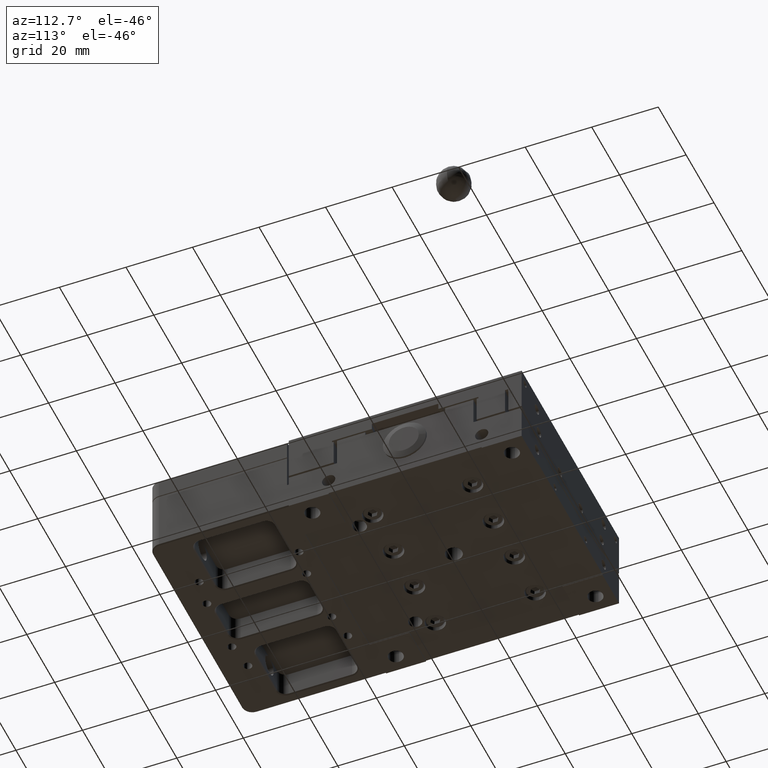
[diagram: clean part render]
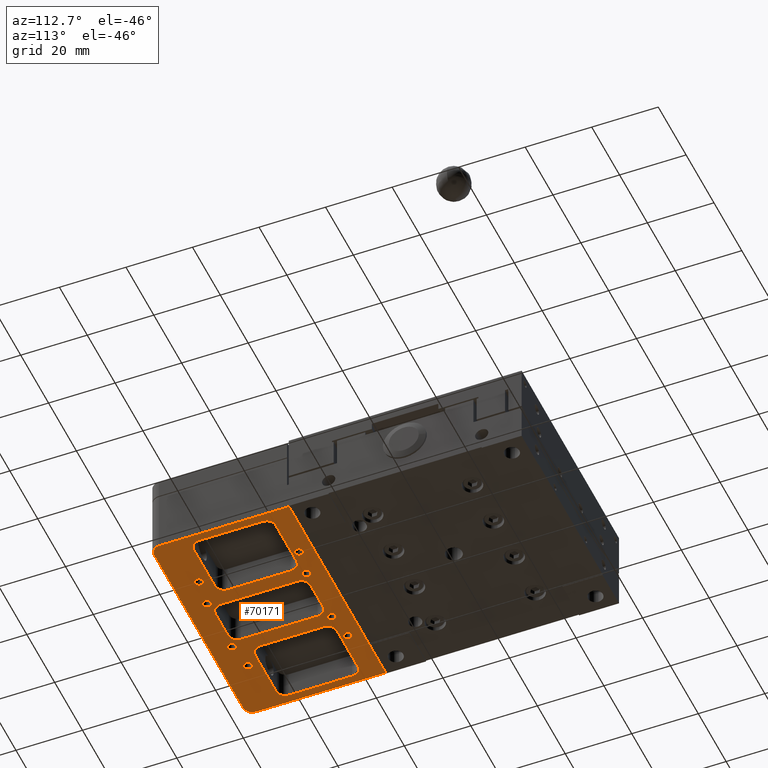
[diagram: same view with one face highlighted and labeled with its STEP entity id]
A machine part, auxiliary view. The second image highlights one B-rep face of the part: STEP entity #70171.
In plain terms, the highlighted planar face has unit normal (0, -0, -1).
Its self-contained STEP definition (entity closure, byte-faithful):
#52 = PLANE ( 'NONE',  #50368 ) ;
#220 = EDGE_CURVE ( 'NONE', #12801, #15108, #69420, .T. ) ;
#346 = DIRECTION ( 'NONE',  ( 1.000000000000000000, 0.0000000000000000000, 0.0000000000000000000 ) ) ;
#428 = EDGE_LOOP ( 'NONE', ( #81326, #33520 ) ) ;
#567 = CIRCLE ( 'NONE', #3140, 1.250000000000001100 ) ;
#685 = CARTESIAN_POINT ( 'NONE',  ( 17.50000000000000400, -69.25000000000000000, 1.630640067418198700E-013 ) ) ;
#745 = EDGE_CURVE ( 'NONE', #24746, #9855, #2786, .T. ) ;
#963 = EDGE_CURVE ( 'NONE', #14629, #40643, #48294, .T. ) ;
#1242 = EDGE_CURVE ( 'NONE', #14469, #1292, #80989, .T. ) ;
#1292 = VERTEX_POINT ( 'NONE', #43328 ) ;
#1954 = CIRCLE ( 'NONE', #75313, 1.250000000000004700 ) ;
#2045 = CARTESIAN_POINT ( 'NONE',  ( 7.299999998005925600, -67.00000000000000000, 1.734723475976807100E-015 ) ) ;
#2598 = LINE ( 'NONE', #45629, #72185 ) ;
#2786 = LINE ( 'NONE', #62035, #18164 ) ;
#2871 = CIRCLE ( 'NONE', #77926, 2.800000000001183300 ) ;
#3114 = CIRCLE ( 'NONE', #41065, 1.250000000000001100 ) ;
#3140 = AXIS2_PLACEMENT_3D ( 'NONE', #20710, #66386, #27298 ) ;
#3340 = CIRCLE ( 'NONE', #26040, 2.799999999999835500 ) ;
#3429 = EDGE_LOOP ( 'NONE', ( #77258, #14258 ) ) ;
#3548 = VERTEX_POINT ( 'NONE', #14839 ) ;
#3752 = EDGE_CURVE ( 'NONE', #33255, #29970, #3340, .T. ) ;
#3825 = CARTESIAN_POINT ( 'NONE',  ( 29.50000000000000000, -63.00000000000000000, 1.317088799135390800E-012 ) ) ;
#3928 = ORIENTED_EDGE ( 'NONE', *, *, #36100, .F. ) ;
#4053 = ORIENTED_EDGE ( 'NONE', *, *, #5221, .F. ) ;
#4143 = CARTESIAN_POINT ( 'NONE',  ( 17.50000000000000400, -39.25000000000000000, 1.908195823574487800E-014 ) ) ;
#4286 = CARTESIAN_POINT ( 'NONE',  ( 32.00000000000001400, -74.00000000000000000, 1.865088464004144300E-013 ) ) ;
#4546 = LINE ( 'NONE', #53604, #54653 ) ;
#4685 = VERTEX_POINT ( 'NONE', #30102 ) ;
#5221 = EDGE_CURVE ( 'NONE', #33738, #12801, #76384, .T. ) ;
#5269 = DIRECTION ( 'NONE',  ( 1.000000000000000000, 0.0000000000000000000, 0.0000000000000000000 ) ) ;
#5476 = FACE_BOUND ( 'NONE', #3429, .T. ) ;
#5700 = EDGE_CURVE ( 'NONE', #40643, #33738, #74188, .T. ) ;
#5835 = CIRCLE ( 'NONE', #56952, 1.250000000000001100 ) ;
#6325 = AXIS2_PLACEMENT_3D ( 'NONE', #75283, #36206, #81860 ) ;
#6630 = CIRCLE ( 'NONE', #16296, 2.800000000001183300 ) ;
#6698 = VECTOR ( 'NONE', #36810, 1000.000000000000000 ) ;
#6786 = EDGE_LOOP ( 'NONE', ( #15998, #23155 ) ) ;
#7166 = AXIS2_PLACEMENT_3D ( 'NONE', #55748, #16587, #62298 ) ;
#7190 = ORIENTED_EDGE ( 'NONE', *, *, #37104, .F. ) ;
#7223 = DIRECTION ( 'NONE',  ( 1.000000000000000000, 0.0000000000000000000, 0.0000000000000000000 ) ) ;
#7413 = CIRCLE ( 'NONE', #41231, 1.250000000000004700 ) ;
#7535 = FACE_BOUND ( 'NONE', #61183, .T. ) ;
#7742 = EDGE_CURVE ( 'NONE', #57899, #33255, #14425, .T. ) ;
#7953 = VECTOR ( 'NONE', #77512, 1000.000000000000000 ) ;
#7981 = EDGE_CURVE ( 'NONE', #47031, #35104, #74640, .T. ) ;
#8320 = EDGE_LOOP ( 'NONE', ( #27474, #7190 ) ) ;
#8774 = CARTESIAN_POINT ( 'NONE',  ( 10.25000000000000200, -40.50000000000000000, 2.602085213965210600E-014 ) ) ;
#8944 = DIRECTION ( 'NONE',  ( -0.0000000000000000000, -0.0000000000000000000, -1.000000000000000000 ) ) ;
#9247 = DIRECTION ( 'NONE',  ( -0.0000000000000000000, -0.0000000000000000000, -1.000000000000000000 ) ) ;
#9684 = CARTESIAN_POINT ( 'NONE',  ( 32.29999999800433100, -44.00000003619999900, 1.229647893924434900E-012 ) ) ;
#9761 = ORIENTED_EDGE ( 'NONE', *, *, #83573, .F. ) ;
#9855 = VERTEX_POINT ( 'NONE', #60348 ) ;
#10388 = VERTEX_POINT ( 'NONE', #39732 ) ;
#10395 = DIRECTION ( 'NONE',  ( -1.000000000000000000, 0.0000000000000000000, 0.0000000000000000000 ) ) ;
#10429 = ORIENTED_EDGE ( 'NONE', *, *, #51838, .F. ) ;
#10694 = DIRECTION ( 'NONE',  ( 1.000000000000000000, 0.0000000000000000000, 0.0000000000000000000 ) ) ;
#10819 = ORIENTED_EDGE ( 'NONE', *, *, #220, .F. ) ;
#10838 = DIRECTION ( 'NONE',  ( 0.0000000000000000000, 1.000000000000000000, -4.682152101927685900E-015 ) ) ;
#11241 = CARTESIAN_POINT ( 'NONE',  ( -32.29999999800433800, -62.99999996380001500, 1.324407163799667900E-012 ) ) ;
#11245 = CARTESIAN_POINT ( 'NONE',  ( -31.99999999999998600, -74.00000000000000000, 1.865088464004144300E-013 ) ) ;
#11592 = ORIENTED_EDGE ( 'NONE', *, *, #14305, .F. ) ;
#11964 = EDGE_CURVE ( 'NONE', #31134, #65822, #12294, .T. ) ;
#11981 = EDGE_CURVE ( 'NONE', #41498, #41033, #3114, .T. ) ;
#12294 = CIRCLE ( 'NONE', #32301, 1.250000000000001100 ) ;
#12801 = VERTEX_POINT ( 'NONE', #11241 ) ;
#12848 = AXIS2_PLACEMENT_3D ( 'NONE', #60945, #21834, #67496 ) ;
#12889 = LINE ( 'NONE', #25160, #45616 ) ;
#13037 = CARTESIAN_POINT ( 'NONE',  ( 14.50000003619999900, -41.20000000199565400, 1.234364173374746800E-012 ) ) ;
#13510 = CARTESIAN_POINT ( 'NONE',  ( -34.70000000000013100, -35.00000000000000000, 8.122441521566896100E-016 ) ) ;
#13805 = VECTOR ( 'NONE', #73254, 1000.000000000000000 ) ;
#14258 = ORIENTED_EDGE ( 'NONE', *, *, #11964, .F. ) ;
#14273 = ORIENTED_EDGE ( 'NONE', *, *, #27826, .F. ) ;
#14305 = EDGE_CURVE ( 'NONE', #9855, #61645, #6630, .T. ) ;
#14391 = CARTESIAN_POINT ( 'NONE',  ( 0.0000000000000000000, -65.79999999601001500, 1.481151995736988200E-013 ) ) ;
#14425 = LINE ( 'NONE', #65888, #16453 ) ;
#14469 = VERTEX_POINT ( 'NONE', #36028 ) ;
#14629 = VERTEX_POINT ( 'NONE', #71101 ) ;
#14636 = CARTESIAN_POINT ( 'NONE',  ( 9.000000000000001800, -70.50000000000000000, 1.682681771697502900E-013 ) ) ;
#14839 = CARTESIAN_POINT ( 'NONE',  ( -11.70000000199566000, -44.00000003619999900, 1.220974276544550800E-012 ) ) ;
#14880 = VERTEX_POINT ( 'NONE', #68483 ) ;
#14985 = CARTESIAN_POINT ( 'NONE',  ( -4.499999963799499600, -41.20000000199497200, -1.192622389734054900E-013 ) ) ;
#15028 = ORIENTED_EDGE ( 'NONE', *, *, #3752, .F. ) ;
#15108 = VERTEX_POINT ( 'NONE', #46743 ) ;
#15361 = ORIENTED_EDGE ( 'NONE', *, *, #36076, .F. ) ;
#15709 = CARTESIAN_POINT ( 'NONE',  ( 18.75000000000000700, -69.25000000000000000, 1.630640067418198700E-013 ) ) ;
#15974 = DIRECTION ( 'NONE',  ( -0.0000000000000000000, -0.0000000000000000000, -1.000000000000000000 ) ) ;
#15998 = ORIENTED_EDGE ( 'NONE', *, *, #17168, .F. ) ;
#16117 = DIRECTION ( 'NONE',  ( -0.0000000000000000000, -0.0000000000000000000, -1.000000000000000000 ) ) ;
#16296 = AXIS2_PLACEMENT_3D ( 'NONE', #22050, #67701, #28630 ) ;
#16453 = VECTOR ( 'NONE', #27059, 1000.000000000000000 ) ;
#16560 = VECTOR ( 'NONE', #74724, 1000.000000000000000 ) ;
#16587 = DIRECTION ( 'NONE',  ( -0.0000000000000000000, -0.0000000000000000000, -1.000000000000000000 ) ) ;
#16752 = EDGE_CURVE ( 'NONE', #1292, #14469, #7413, .T. ) ;
#16889 = ORIENTED_EDGE ( 'NONE', *, *, #58095, .F. ) ;
#17168 = EDGE_CURVE ( 'NONE', #70324, #56057, #78868, .T. ) ;
#17431 = EDGE_CURVE ( 'NONE', #80192, #14880, #57290, .T. ) ;
#17646 = ORIENTED_EDGE ( 'NONE', *, *, #74676, .T. ) ;
#17652 = DIRECTION ( 'NONE',  ( -0.0000000000000000000, -0.0000000000000000000, -1.000000000000000000 ) ) ;
#17829 = DIRECTION ( 'NONE',  ( 0.0000000000000000000, 1.000000000000000000, -4.682152101927673300E-015 ) ) ;
#18057 = ORIENTED_EDGE ( 'NONE', *, *, #963, .F. ) ;
#18164 = VECTOR ( 'NONE', #55461, 1000.000000000000000 ) ;
#18301 = DIRECTION ( 'NONE',  ( -0.0000000000000000000, -0.0000000000000000000, -1.000000000000000000 ) ) ;
#18733 = EDGE_LOOP ( 'NONE', ( #28280, #48124, #3928, #41516, #15028, #19294, #51246, #69779 ) ) ;
#18819 = CARTESIAN_POINT ( 'NONE',  ( -4.499999991968501900, -69.79999999800503500, 1.301042606982605300E-015 ) ) ;
#19157 = EDGE_CURVE ( 'NONE', #56057, #70324, #567, .T. ) ;
#19195 = LINE ( 'NONE', #80179, #53989 ) ;
#19294 = ORIENTED_EDGE ( 'NONE', *, *, #7742, .F. ) ;
#19399 = DIRECTION ( 'NONE',  ( -0.0000000000000000000, -0.0000000000000000000, -1.000000000000000000 ) ) ;
#19608 = DIRECTION ( 'NONE',  ( 0.0000000000000000000, -1.000000000000000000, 4.682152101927685900E-015 ) ) ;
#19687 = CARTESIAN_POINT ( 'NONE',  ( -14.50000000000000200, -63.00000000000000000, 1.318877732719991900E-012 ) ) ;
#19824 = VERTEX_POINT ( 'NONE', #15709 ) ;
#20336 = AXIS2_PLACEMENT_3D ( 'NONE', #19687, #65402, #26238 ) ;
#20508 = CIRCLE ( 'NONE', #12848, 2.800000000001183300 ) ;
#20625 = CIRCLE ( 'NONE', #67927, 1.250000000000001100 ) ;
#20710 = CARTESIAN_POINT ( 'NONE',  ( 9.000000000000001800, -70.50000000000000000, 1.682681771697502900E-013 ) ) ;
#21042 = VERTEX_POINT ( 'NONE', #83243 ) ;
#21106 = EDGE_CURVE ( 'NONE', #61645, #50735, #79576, .T. ) ;
#21246 = DIRECTION ( 'NONE',  ( 1.000000000000000000, 0.0000000000000000000, 0.0000000000000000000 ) ) ;
#21458 = VERTEX_POINT ( 'NONE', #76856 ) ;
#21574 = CARTESIAN_POINT ( 'NONE',  ( -29.50000000000000000, -44.00000000000000000, 1.216583257745984500E-012 ) ) ;
#21834 = DIRECTION ( 'NONE',  ( -3.009265538103724800E-032, 1.084202172485265800E-017, -1.000000000000000000 ) ) ;
#22049 = LINE ( 'NONE', #31915, #37371 ) ;
#22050 = CARTESIAN_POINT ( 'NONE',  ( 29.50000000000000000, -44.00000000000000000, 1.229647893924434900E-012 ) ) ;
#22693 = EDGE_LOOP ( 'NONE', ( #45851, #42520 ) ) ;
#22700 = CARTESIAN_POINT ( 'NONE',  ( -31.99999995397682200, -76.70002049568925900, -2.228686806522899500E-005 ) ) ;
#22725 = CARTESIAN_POINT ( 'NONE',  ( -17.50000000000000400, -39.25000000000000000, 1.908195823574487800E-014 ) ) ;
#22924 = FACE_BOUND ( 'NONE', #37035, .T. ) ;
#23136 = CIRCLE ( 'NONE', #38944, 2.700081588206532300 ) ;
#23155 = ORIENTED_EDGE ( 'NONE', *, *, #19157, .F. ) ;
#23654 = CARTESIAN_POINT ( 'NONE',  ( 0.0000000000000000000, -65.79999999601001500, 1.481151995736987900E-013 ) ) ;
#23859 = CARTESIAN_POINT ( 'NONE',  ( 17.50000000000000400, -69.25000000000000000, 1.630640067418198700E-013 ) ) ;
#23947 = CARTESIAN_POINT ( 'NONE',  ( -14.50000001199500200, -41.20000000199440400, 1.221003007902099900E-012 ) ) ;
#24676 = LINE ( 'NONE', #35904, #42066 ) ;
#24746 = VERTEX_POINT ( 'NONE', #13037 ) ;
#24940 = FACE_BOUND ( 'NONE', #78943, .T. ) ;
#25065 = VECTOR ( 'NONE', #74133, 1000.000000000000000 ) ;
#25160 = CARTESIAN_POINT ( 'NONE',  ( -34.70000000000011700, -74.78000000000000100, 1.901555085268014100E-013 ) ) ;
#26040 = AXIS2_PLACEMENT_3D ( 'NONE', #56782, #17652, #63359 ) ;
#26238 = DIRECTION ( 'NONE',  ( -1.000000000000000000, 0.0000000000000000000, 0.0000000000000000000 ) ) ;
#26943 = VERTEX_POINT ( 'NONE', #59498 ) ;
#27059 = DIRECTION ( 'NONE',  ( -0.0000000000000000000, 1.000000000000000000, -4.682152101927686700E-015 ) ) ;
#27298 = DIRECTION ( 'NONE',  ( 1.000000000000000000, 0.0000000000000000000, 0.0000000000000000000 ) ) ;
#27355 = ORIENTED_EDGE ( 'NONE', *, *, #745, .F. ) ;
#27444 = ORIENTED_EDGE ( 'NONE', *, *, #5700, .F. ) ;
#27474 = ORIENTED_EDGE ( 'NONE', *, *, #36328, .F. ) ;
#27614 = ORIENTED_EDGE ( 'NONE', *, *, #40874, .F. ) ;
#27723 = VERTEX_POINT ( 'NONE', #76496 ) ;
#27767 = CIRCLE ( 'NONE', #63598, 2.800000000001190400 ) ;
#27826 = EDGE_CURVE ( 'NONE', #21042, #24746, #73026, .T. ) ;
#27832 = CARTESIAN_POINT ( 'NONE',  ( -16.25000000000000400, -69.25000000000000000, 1.630640067418198700E-013 ) ) ;
#28091 = VERTEX_POINT ( 'NONE', #55035 ) ;
#28145 = DIRECTION ( 'NONE',  ( 0.0000000000000000000, 1.000000000000000000, 1.084202172487581800E-017 ) ) ;
#28181 = CARTESIAN_POINT ( 'NONE',  ( 0.0000000000000000000, -69.79999999601001500, 1.668438079814094800E-013 ) ) ;
#28236 = EDGE_CURVE ( 'NONE', #26943, #33222, #45359, .T. ) ;
#28280 = ORIENTED_EDGE ( 'NONE', *, *, #47085, .F. ) ;
#28630 = DIRECTION ( 'NONE',  ( -1.000000000000000000, 0.0000000000000000000, 0.0000000000000000000 ) ) ;
#28659 = CARTESIAN_POINT ( 'NONE',  ( -10.25000000000000200, -40.50000000000000000, 2.602085213965210600E-014 ) ) ;
#29067 = CARTESIAN_POINT ( 'NONE',  ( 34.70000000000013100, -34.21999999999999900, 2.574980159653073000E-016 ) ) ;
#29259 = DIRECTION ( 'NONE',  ( 1.000000000000000000, 0.0000000000000000000, 0.0000000000000000000 ) ) ;
#29481 = CARTESIAN_POINT ( 'NONE',  ( 4.500000000000000900, -67.00000000000000000, 1.734723475976807100E-015 ) ) ;
#29963 = EDGE_CURVE ( 'NONE', #15108, #53560, #2871, .T. ) ;
#29970 = VERTEX_POINT ( 'NONE', #14985 ) ;
#30102 = CARTESIAN_POINT ( 'NONE',  ( 11.70000000199566200, -62.99999996380001500, 1.312535150010951700E-012 ) ) ;
#30230 = AXIS2_PLACEMENT_3D ( 'NONE', #4143, #49878, #10694 ) ;
#30438 = DIRECTION ( 'NONE',  ( 1.000000000000000000, 0.0000000000000000000, 0.0000000000000000000 ) ) ;
#30586 = CARTESIAN_POINT ( 'NONE',  ( -7.750000000000000000, -40.50000000000000000, 2.602085213965210600E-014 ) ) ;
#30653 = ORIENTED_EDGE ( 'NONE', *, *, #46602, .F. ) ;
#30780 = CARTESIAN_POINT ( 'NONE',  ( -29.49999996380000100, -41.20000000199564000, 1.216611989103533600E-012 ) ) ;
#30866 = DIRECTION ( 'NONE',  ( -0.0000000000000000000, -0.0000000000000000000, -1.000000000000000000 ) ) ;
#30899 = CARTESIAN_POINT ( 'NONE',  ( -29.49999999196999700, -65.79999999800433800, 1.324407163799667900E-012 ) ) ;
#31134 = VERTEX_POINT ( 'NONE', #75031 ) ;
#31141 = CARTESIAN_POINT ( 'NONE',  ( -32.29999999600999400, -55.85000000000000100, 1.015277861781999700E-013 ) ) ;
#31761 = DIRECTION ( 'NONE',  ( 2.490164328172554000E-016, -1.000000000000000000, 4.682152101927685900E-015 ) ) ;
#31915 = CARTESIAN_POINT ( 'NONE',  ( 0.0000000000000000000, -35.00000000000000000, -8.131516293641283300E-017 ) ) ;
#32076 = CARTESIAN_POINT ( 'NONE',  ( -9.000000000000001800, -70.50000000000000000, 1.682681771697502900E-013 ) ) ;
#32301 = AXIS2_PLACEMENT_3D ( 'NONE', #58533, #19399, #65129 ) ;
#32337 = DIRECTION ( 'NONE',  ( -0.0000000000000000000, -0.0000000000000000000, -1.000000000000000000 ) ) ;
#32379 = VERTEX_POINT ( 'NONE', #18819 ) ;
#33193 = VECTOR ( 'NONE', #46408, 1000.000000000000000 ) ;
#33222 = VERTEX_POINT ( 'NONE', #22700 ) ;
#33242 = LINE ( 'NONE', #40739, #13805 ) ;
#33255 = VERTEX_POINT ( 'NONE', #49210 ) ;
#33286 = ORIENTED_EDGE ( 'NONE', *, *, #84116, .F. ) ;
#33520 = ORIENTED_EDGE ( 'NONE', *, *, #77444, .F. ) ;
#33738 = VERTEX_POINT ( 'NONE', #30899 ) ;
#34432 = ORIENTED_EDGE ( 'NONE', *, *, #40973, .F. ) ;
#34882 = CARTESIAN_POINT ( 'NONE',  ( 9.000000000000001800, -40.50000000000000000, 2.602085213965210600E-014 ) ) ;
#35104 = VERTEX_POINT ( 'NONE', #30586 ) ;
#35696 = AXIS2_PLACEMENT_3D ( 'NONE', #685, #46420, #7223 ) ;
#35904 = CARTESIAN_POINT ( 'NONE',  ( -11.70000000399000400, -55.84999999999999400, 1.015277861781999700E-013 ) ) ;
#36028 = CARTESIAN_POINT ( 'NONE',  ( 18.75000000000001100, -39.25000000000000000, 1.908195823574487800E-014 ) ) ;
#36071 = DIRECTION ( 'NONE',  ( -1.000000000000000000, 0.0000000000000000000, 0.0000000000000000000 ) ) ;
#36076 = EDGE_CURVE ( 'NONE', #39926, #45952, #68657, .T. ) ;
#36100 = EDGE_CURVE ( 'NONE', #47869, #28091, #77868, .T. ) ;
#36206 = DIRECTION ( 'NONE',  ( -0.0000000000000000000, -0.0000000000000000000, -1.000000000000000000 ) ) ;
#36328 = EDGE_CURVE ( 'NONE', #76147, #21458, #76807, .T. ) ;
#36346 = AXIS2_PLACEMENT_3D ( 'NONE', #14636, #60347, #21246 ) ;
#36601 = ORIENTED_EDGE ( 'NONE', *, *, #28236, .F. ) ;
#36810 = DIRECTION ( 'NONE',  ( -1.000000000000000000, -0.0000000000000000000, -0.0000000000000000000 ) ) ;
#37035 = EDGE_LOOP ( 'NONE', ( #44299, #59129 ) ) ;
#37104 = EDGE_CURVE ( 'NONE', #21458, #76147, #45374, .T. ) ;
#37371 = VECTOR ( 'NONE', #77594, 1000.000000000000000 ) ;
#37423 = CARTESIAN_POINT ( 'NONE',  ( 14.50000000803000200, -65.79999999800433800, 1.312535150010951700E-012 ) ) ;
#38027 = ORIENTED_EDGE ( 'NONE', *, *, #56330, .F. ) ;
#38231 = ORIENTED_EDGE ( 'NONE', *, *, #42337, .F. ) ;
#38239 = FACE_OUTER_BOUND ( 'NONE', #42802, .T. ) ;
#38656 = DIRECTION ( 'NONE',  ( 1.000000000000000000, 0.0000000000000000000, 0.0000000000000000000 ) ) ;
#38794 = CARTESIAN_POINT ( 'NONE',  ( 14.50000000000000000, -44.00000000000000000, 1.234364173374746800E-012 ) ) ;
#38944 = AXIS2_PLACEMENT_3D ( 'NONE', #4286, #50012, #10838 ) ;
#38968 = CARTESIAN_POINT ( 'NONE',  ( 7.750000000000000000, -70.50000000000000000, 1.682681771697502900E-013 ) ) ;
#39159 = DIRECTION ( 'NONE',  ( -0.0000000000000000000, -0.0000000000000000000, -1.000000000000000000 ) ) ;
#39570 = DIRECTION ( 'NONE',  ( 0.0000000000000000000, -4.682152101927685900E-015, -1.000000000000000000 ) ) ;
#39732 = CARTESIAN_POINT ( 'NONE',  ( 16.25000000000000400, -69.25000000000000000, 1.630640067418198700E-013 ) ) ;
#39863 = CARTESIAN_POINT ( 'NONE',  ( 33.28000000000000100, -76.70000000000011700, 1.991543865584311000E-013 ) ) ;
#39926 = VERTEX_POINT ( 'NONE', #74721 ) ;
#40316 = FACE_BOUND ( 'NONE', #22693, .T. ) ;
#40643 = VERTEX_POINT ( 'NONE', #43493 ) ;
#40739 = CARTESIAN_POINT ( 'NONE',  ( 0.0000000000000000000, -41.20000000398999200, 3.293425790364110300E-014 ) ) ;
#40874 = EDGE_CURVE ( 'NONE', #27723, #79561, #80814, .T. ) ;
#40973 = EDGE_CURVE ( 'NONE', #83296, #3548, #20508, .T. ) ;
#41033 = VERTEX_POINT ( 'NONE', #54659 ) ;
#41065 = AXIS2_PLACEMENT_3D ( 'NONE', #78262, #39159, #84799 ) ;
#41077 = DIRECTION ( 'NONE',  ( -0.0000000000000000000, 1.000000000000000000, -4.682152101927685900E-015 ) ) ;
#41203 = AXIS2_PLACEMENT_3D ( 'NONE', #55296, #16117, #61855 ) ;
#41231 = AXIS2_PLACEMENT_3D ( 'NONE', #48436, #9247, #55023 ) ;
#41448 = DIRECTION ( 'NONE',  ( 1.000000000000000000, 0.0000000000000000000, 0.0000000000000000000 ) ) ;
#41498 = VERTEX_POINT ( 'NONE', #81421 ) ;
#41516 = ORIENTED_EDGE ( 'NONE', *, *, #74850, .F. ) ;
#42066 = VECTOR ( 'NONE', #42453, 1000.000000000000000 ) ;
#42337 = EDGE_CURVE ( 'NONE', #53560, #83296, #33242, .T. ) ;
#42336 = FACE_BOUND ( 'NONE', #18733, .T. ) ;
#42453 = DIRECTION ( 'NONE',  ( 0.0000000000000000000, -1.000000000000000000, 4.682152101927685900E-015 ) ) ;
#42520 = ORIENTED_EDGE ( 'NONE', *, *, #7981, .F. ) ;
#42802 = EDGE_LOOP ( 'NONE', ( #15361, #38027, #16889, #36601, #33286, #17646 ) ) ;
#43328 = CARTESIAN_POINT ( 'NONE',  ( 16.25000000000000000, -39.25000000000000000, 1.908195823574487800E-014 ) ) ;
#43493 = CARTESIAN_POINT ( 'NONE',  ( -14.50000003620000100, -65.79999999800433800, 1.318877732719991900E-012 ) ) ;
#44299 = ORIENTED_EDGE ( 'NONE', *, *, #55820, .F. ) ;
#44458 = DIRECTION ( 'NONE',  ( -0.0000000000000000000, -0.0000000000000000000, -1.000000000000000000 ) ) ;
#44526 = CARTESIAN_POINT ( 'NONE',  ( 31.99999997346683500, -76.70002049568510900, -2.228686478025094200E-005 ) ) ;
#45184 = ORIENTED_EDGE ( 'NONE', *, *, #21106, .F. ) ;
#45359 = CIRCLE ( 'NONE', #73127, 2.700081588206518100 ) ;
#45361 = DIRECTION ( 'NONE',  ( -1.000000000000000000, 0.0000000000000000000, 0.0000000000000000000 ) ) ;
#45374 = CIRCLE ( 'NONE', #65567, 1.250000000000001100 ) ;
#45616 = VECTOR ( 'NONE', #31761, 1000.000000000000000 ) ;
#45629 = CARTESIAN_POINT ( 'NONE',  ( 7.299999996012003200, -55.84999999999999400, 1.015277861781999700E-013 ) ) ;
#45851 = ORIENTED_EDGE ( 'NONE', *, *, #75574, .F. ) ;
#45952 = VERTEX_POINT ( 'NONE', #68512 ) ;
#46087 = VECTOR ( 'NONE', #60110, 1000.000000000000000 ) ;
#46225 = CIRCLE ( 'NONE', #7166, 1.250000000000001100 ) ;
#46408 = DIRECTION ( 'NONE',  ( 1.000000000000000000, 0.0000000000000000000, 0.0000000000000000000 ) ) ;
#46420 = DIRECTION ( 'NONE',  ( -0.0000000000000000000, -0.0000000000000000000, -1.000000000000000000 ) ) ;
#46602 = EDGE_CURVE ( 'NONE', #50735, #27723, #27767, .T. ) ;
#46743 = CARTESIAN_POINT ( 'NONE',  ( -32.29999999800558900, -44.00000001199499900, 1.216583257745984500E-012 ) ) ;
#47031 = VERTEX_POINT ( 'NONE', #28659 ) ;
#47085 = EDGE_CURVE ( 'NONE', #63372, #77848, #68367, .T. ) ;
#47495 = ORIENTED_EDGE ( 'NONE', *, *, #84313, .F. ) ;
#47853 = EDGE_CURVE ( 'NONE', #28091, #63372, #2598, .T. ) ;
#47869 = VERTEX_POINT ( 'NONE', #71898 ) ;
#48124 = ORIENTED_EDGE ( 'NONE', *, *, #47853, .F. ) ;
#48134 = CARTESIAN_POINT ( 'NONE',  ( -4.500000000000000900, -67.00000000000000000, 1.301042606982605300E-015 ) ) ;
#48294 = CIRCLE ( 'NONE', #20336, 2.800000000001176700 ) ;
#48436 = CARTESIAN_POINT ( 'NONE',  ( 17.50000000000000400, -39.25000000000000000, 1.908195823574487800E-014 ) ) ;
#49210 = CARTESIAN_POINT ( 'NONE',  ( -7.299999998005917600, -44.00000001199500600, -1.192622389734054900E-013 ) ) ;
#49540 = DIRECTION ( 'NONE',  ( -0.0000000000000000000, -0.0000000000000000000, -1.000000000000000000 ) ) ;
#49878 = DIRECTION ( 'NONE',  ( -0.0000000000000000000, -0.0000000000000000000, -1.000000000000000000 ) ) ;
#50012 = DIRECTION ( 'NONE',  ( -0.0000000000000000000, 4.682152101927685900E-015, 1.000000000000000000 ) ) ;
#50368 = AXIS2_PLACEMENT_3D ( 'NONE', #78674, #39570, #346 ) ;
#50549 = LINE ( 'NONE', #39863, #33193 ) ;
#50735 = VERTEX_POINT ( 'NONE', #50862 ) ;
#50862 = CARTESIAN_POINT ( 'NONE',  ( 32.29999999800558900, -63.00000000000000000, 1.317088799135390800E-012 ) ) ;
#51246 = ORIENTED_EDGE ( 'NONE', *, *, #76684, .F. ) ;
#51838 = EDGE_CURVE ( 'NONE', #41033, #41498, #20625, .T. ) ;
#52091 = VECTOR ( 'NONE', #70499, 1000.000000000000000 ) ;
#53054 = ORIENTED_EDGE ( 'NONE', *, *, #57692, .F. ) ;
#53085 = ORIENTED_EDGE ( 'NONE', *, *, #29963, .F. ) ;
#53560 = VERTEX_POINT ( 'NONE', #30780 ) ;
#53604 = CARTESIAN_POINT ( 'NONE',  ( 0.0000000000000000000, -41.20000000398999200, 3.293425790364109600E-014 ) ) ;
#53989 = VECTOR ( 'NONE', #41077, 1000.000000000000000 ) ;
#54340 = CARTESIAN_POINT ( 'NONE',  ( 4.499999963799499600, -69.79999999800502100, 1.734723475976807100E-015 ) ) ;
#54653 = VECTOR ( 'NONE', #73293, 1000.000000000000000 ) ;
#54659 = CARTESIAN_POINT ( 'NONE',  ( -7.750000000000000000, -70.50000000000000000, 1.682681771697502900E-013 ) ) ;
#54690 = DIRECTION ( 'NONE',  ( -1.000000000000000000, 0.0000000000000000000, 0.0000000000000000000 ) ) ;
#55023 = DIRECTION ( 'NONE',  ( 1.000000000000000000, 0.0000000000000000000, 0.0000000000000000000 ) ) ;
#55035 = CARTESIAN_POINT ( 'NONE',  ( 7.299999998006014400, -44.00000003619999900, -1.166601537594402800E-013 ) ) ;
#55140 = CARTESIAN_POINT ( 'NONE',  ( 14.50000000000000000, -63.00000000000000000, 1.312535150010951700E-012 ) ) ;
#55296 = CARTESIAN_POINT ( 'NONE',  ( -9.000000000000001800, -40.50000000000000000, 2.602085213965210600E-014 ) ) ;
#55461 = DIRECTION ( 'NONE',  ( 1.000000000000000000, 0.0000000000000000000, 0.0000000000000000000 ) ) ;
#55610 = FACE_BOUND ( 'NONE', #428, .T. ) ;
#55748 = CARTESIAN_POINT ( 'NONE',  ( -9.000000000000001800, -40.50000000000000000, 2.602085213965210600E-014 ) ) ;
#55820 = EDGE_CURVE ( 'NONE', #19824, #10388, #5835, .T. ) ;
#56057 = VERTEX_POINT ( 'NONE', #38968 ) ;
#56330 = EDGE_CURVE ( 'NONE', #81989, #39926, #23136, .T. ) ;
#56535 = CIRCLE ( 'NONE', #65953, 1.250000000000001100 ) ;
#56782 = CARTESIAN_POINT ( 'NONE',  ( -4.500000000000000900, -44.00000000000000000, -1.192622389734054900E-013 ) ) ;
#56832 = ORIENTED_EDGE ( 'NONE', *, *, #16752, .F. ) ;
#56952 = AXIS2_PLACEMENT_3D ( 'NONE', #23859, #69504, #30438 ) ;
#56979 = DIRECTION ( 'NONE',  ( -0.0000000000000000000, 4.682152101927685900E-015, 1.000000000000000000 ) ) ;
#57290 = CIRCLE ( 'NONE', #82862, 1.250000000000004700 ) ;
#57423 = CARTESIAN_POINT ( 'NONE',  ( -17.50000000000000400, -39.25000000000000000, 1.908195823574487800E-014 ) ) ;
#57649 = FACE_BOUND ( 'NONE', #79578, .T. ) ;
#57692 = EDGE_CURVE ( 'NONE', #3548, #14629, #24676, .T. ) ;
#57811 = CARTESIAN_POINT ( 'NONE',  ( 32.29999999600999400, -55.84999999999999400, 1.015277861781999700E-013 ) ) ;
#57834 = CARTESIAN_POINT ( 'NONE',  ( -7.299999998006004600, -66.99999996380000800, 1.301042606982605300E-015 ) ) ;
#57899 = VERTEX_POINT ( 'NONE', #57834 ) ;
#58095 = EDGE_CURVE ( 'NONE', #33222, #81989, #50549, .T. ) ;
#58533 = CARTESIAN_POINT ( 'NONE',  ( -17.50000000000000400, -69.25000000000000000, 1.630640067418198700E-013 ) ) ;
#58577 = EDGE_CURVE ( 'NONE', #65822, #31134, #56535, .T. ) ;
#59129 = ORIENTED_EDGE ( 'NONE', *, *, #80099, .F. ) ;
#59498 = CARTESIAN_POINT ( 'NONE',  ( -34.70002049513340100, -73.99999997519782400, -2.228715919370274400E-005 ) ) ;
#59827 = LINE ( 'NONE', #28181, #25065 ) ;
#60110 = DIRECTION ( 'NONE',  ( -1.000000000000000000, -0.0000000000000000000, -0.0000000000000000000 ) ) ;
#60347 = DIRECTION ( 'NONE',  ( -0.0000000000000000000, -0.0000000000000000000, -1.000000000000000000 ) ) ;
#60348 = CARTESIAN_POINT ( 'NONE',  ( 29.49999998800500500, -41.20000000199440400, 1.229647893924434900E-012 ) ) ;
#60945 = CARTESIAN_POINT ( 'NONE',  ( -14.50000000000000200, -44.00000000000000000, 1.220974276544550800E-012 ) ) ;
#61183 = EDGE_LOOP ( 'NONE', ( #18057, #53054, #34432, #38231, #53085, #10819, #4053, #27444 ) ) ;
#61645 = VERTEX_POINT ( 'NONE', #9684 ) ;
#61691 = DIRECTION ( 'NONE',  ( -1.000000000000000000, 0.0000000000000000000, 0.0000000000000000000 ) ) ;
#61855 = DIRECTION ( 'NONE',  ( 1.000000000000000000, 0.0000000000000000000, 0.0000000000000000000 ) ) ;
#62035 = CARTESIAN_POINT ( 'NONE',  ( 0.0000000000000000000, -41.20000000398999200, 3.293425790364109600E-014 ) ) ;
#62298 = DIRECTION ( 'NONE',  ( 1.000000000000000000, 0.0000000000000000000, 0.0000000000000000000 ) ) ;
#63128 = AXIS2_PLACEMENT_3D ( 'NONE', #48134, #8944, #54690 ) ;
#63314 = AXIS2_PLACEMENT_3D ( 'NONE', #83555, #44458, #5269 ) ;
#63359 = DIRECTION ( 'NONE',  ( -1.000000000000000000, 0.0000000000000000000, 0.0000000000000000000 ) ) ;
#63372 = VERTEX_POINT ( 'NONE', #2045 ) ;
#63553 = CIRCLE ( 'NONE', #63128, 2.799999999999847900 ) ;
#63598 = AXIS2_PLACEMENT_3D ( 'NONE', #3825, #49540, #10395 ) ;
#63993 = DIRECTION ( 'NONE',  ( 1.000000000000000000, 0.0000000000000000000, 0.0000000000000000000 ) ) ;
#64874 = AXIS2_PLACEMENT_3D ( 'NONE', #38794, #84460, #45361 ) ;
#65129 = DIRECTION ( 'NONE',  ( 1.000000000000000000, 0.0000000000000000000, 0.0000000000000000000 ) ) ;
#65402 = DIRECTION ( 'NONE',  ( -0.0000000000000000000, -0.0000000000000000000, -1.000000000000000000 ) ) ;
#65567 = AXIS2_PLACEMENT_3D ( 'NONE', #34882, #80566, #41448 ) ;
#65728 = AXIS2_PLACEMENT_3D ( 'NONE', #55140, #15974, #61691 ) ;
#65822 = VERTEX_POINT ( 'NONE', #27832 ) ;
#65888 = CARTESIAN_POINT ( 'NONE',  ( -7.299999996011997900, -55.84999999999998000, 1.015277861781999700E-013 ) ) ;
#65953 = AXIS2_PLACEMENT_3D ( 'NONE', #71443, #32337, #78003 ) ;
#66386 = DIRECTION ( 'NONE',  ( -0.0000000000000000000, -0.0000000000000000000, -1.000000000000000000 ) ) ;
#66990 = CIRCLE ( 'NONE', #65728, 2.800000000001181500 ) ;
#67236 = DIRECTION ( 'NONE',  ( 3.009265538103735200E-032, 1.084202172485267300E-017, -1.000000000000000000 ) ) ;
#67496 = DIRECTION ( 'NONE',  ( 0.0000000000000000000, 1.000000000000000000, 1.084202172487581800E-017 ) ) ;
#67505 = CARTESIAN_POINT ( 'NONE',  ( -16.25000000000000000, -39.25000000000000000, 1.908195823574487800E-014 ) ) ;
#67701 = DIRECTION ( 'NONE',  ( -0.0000000000000000000, 0.0000000000000000000, -1.000000000000000000 ) ) ;
#67927 = AXIS2_PLACEMENT_3D ( 'NONE', #32076, #77756, #38656 ) ;
#68367 = CIRCLE ( 'NONE', #74569, 2.799999999999847500 ) ;
#68375 = DIRECTION ( 'NONE',  ( -0.0000000000000000000, -0.0000000000000000000, -1.000000000000000000 ) ) ;
#68483 = CARTESIAN_POINT ( 'NONE',  ( -18.75000000000001100, -39.25000000000000000, 1.908195823574487800E-014 ) ) ;
#68512 = CARTESIAN_POINT ( 'NONE',  ( 34.70000000000011700, -35.00000000000000000, 3.003496973699515600E-015 ) ) ;
#68657 = LINE ( 'NONE', #29067, #16560 ) ;
#69316 = EDGE_CURVE ( 'NONE', #77848, #32379, #59827, .T. ) ;
#69420 = LINE ( 'NONE', #31141, #52091 ) ;
#69504 = DIRECTION ( 'NONE',  ( -0.0000000000000000000, -0.0000000000000000000, -1.000000000000000000 ) ) ;
#69779 = ORIENTED_EDGE ( 'NONE', *, *, #69316, .F. ) ;
#69936 = CARTESIAN_POINT ( 'NONE',  ( -29.50000000000000000, -63.00000000000000000, 1.324407163799667900E-012 ) ) ;
#70171 = ADVANCED_FACE ( 'NONE', ( #24940, #42336, #7535, #75008, #77074, #57649, #40316, #22924, #5476, #72981, #55610, #38239 ), #52, .T. ) ;
#70324 = VERTEX_POINT ( 'NONE', #74057 ) ;
#70499 = DIRECTION ( 'NONE',  ( -0.0000000000000000000, 1.000000000000000000, -4.682152101927684400E-015 ) ) ;
#71101 = CARTESIAN_POINT ( 'NONE',  ( -11.70000000199441300, -63.00000000000000000, 1.318877732719991900E-012 ) ) ;
#71443 = CARTESIAN_POINT ( 'NONE',  ( -17.50000000000000400, -69.25000000000000000, 1.630640067418198700E-013 ) ) ;
#71898 = CARTESIAN_POINT ( 'NONE',  ( 4.499999988006498700, -41.20000000199507200, -1.166601537594402800E-013 ) ) ;
#72185 = VECTOR ( 'NONE', #19608, 1000.000000000000000 ) ;
#72335 = ORIENTED_EDGE ( 'NONE', *, *, #1242, .F. ) ;
#72737 = AXIS2_PLACEMENT_3D ( 'NONE', #69936, #30866, #76525 ) ;
#72981 = FACE_BOUND ( 'NONE', #79174, .T. ) ;
#73026 = CIRCLE ( 'NONE', #64874, 2.800000000001171300 ) ;
#73127 = AXIS2_PLACEMENT_3D ( 'NONE', #11245, #56979, #17829 ) ;
#73254 = DIRECTION ( 'NONE',  ( 1.000000000000000000, 0.0000000000000000000, 0.0000000000000000000 ) ) ;
#73293 = DIRECTION ( 'NONE',  ( 1.000000000000000000, 0.0000000000000000000, 0.0000000000000000000 ) ) ;
#74057 = CARTESIAN_POINT ( 'NONE',  ( 10.25000000000000200, -70.50000000000000000, 1.682681771697502900E-013 ) ) ;
#74133 = DIRECTION ( 'NONE',  ( -1.000000000000000000, -0.0000000000000000000, -0.0000000000000000000 ) ) ;
#74188 = LINE ( 'NONE', #23654, #6698 ) ;
#74569 = AXIS2_PLACEMENT_3D ( 'NONE', #29481, #75157, #36071 ) ;
#74640 = CIRCLE ( 'NONE', #41203, 1.250000000000001100 ) ;
#74676 = EDGE_CURVE ( 'NONE', #79194, #45952, #22049, .T. ) ;
#74721 = CARTESIAN_POINT ( 'NONE',  ( 34.70002049617288300, -73.99999998221227300, -2.228671593550366100E-005 ) ) ;
#74724 = DIRECTION ( 'NONE',  ( 2.490164328172553500E-016, 1.000000000000000000, -4.682152101927685900E-015 ) ) ;
#74850 = EDGE_CURVE ( 'NONE', #29970, #47869, #4546, .T. ) ;
#75008 = FACE_BOUND ( 'NONE', #6786, .T. ) ;
#75031 = CARTESIAN_POINT ( 'NONE',  ( -18.75000000000000700, -69.25000000000000000, 1.630640067418198700E-013 ) ) ;
#75157 = DIRECTION ( 'NONE',  ( -0.0000000000000000000, -0.0000000000000000000, -1.000000000000000000 ) ) ;
#75283 = CARTESIAN_POINT ( 'NONE',  ( 4.500000000000000900, -44.00000000000000000, -1.166601537594402800E-013 ) ) ;
#75313 = AXIS2_PLACEMENT_3D ( 'NONE', #22725, #68375, #29259 ) ;
#75574 = EDGE_CURVE ( 'NONE', #35104, #47031, #46225, .T. ) ;
#76147 = VERTEX_POINT ( 'NONE', #8774 ) ;
#76229 = ORIENTED_EDGE ( 'NONE', *, *, #11981, .F. ) ;
#76384 = CIRCLE ( 'NONE', #72737, 2.800000000001169600 ) ;
#76496 = CARTESIAN_POINT ( 'NONE',  ( 29.49999996380000100, -65.79999999800433800, 1.317088799135390800E-012 ) ) ;
#76525 = DIRECTION ( 'NONE',  ( -1.000000000000000000, 0.0000000000000000000, 0.0000000000000000000 ) ) ;
#76684 = EDGE_CURVE ( 'NONE', #32379, #57899, #63553, .T. ) ;
#76807 = CIRCLE ( 'NONE', #63314, 1.250000000000001100 ) ;
#76856 = CARTESIAN_POINT ( 'NONE',  ( 7.750000000000000000, -40.50000000000000000, 2.602085213965210600E-014 ) ) ;
#77074 = FACE_BOUND ( 'NONE', #8320, .T. ) ;
#77258 = ORIENTED_EDGE ( 'NONE', *, *, #58577, .F. ) ;
#77444 = EDGE_CURVE ( 'NONE', #14880, #80192, #1954, .T. ) ;
#77512 = DIRECTION ( 'NONE',  ( 0.0000000000000000000, -1.000000000000000000, 4.682152101927685900E-015 ) ) ;
#77594 = DIRECTION ( 'NONE',  ( 1.000000000000000000, 0.0000000000000000000, 0.0000000000000000000 ) ) ;
#77756 = DIRECTION ( 'NONE',  ( -0.0000000000000000000, -0.0000000000000000000, -1.000000000000000000 ) ) ;
#77848 = VERTEX_POINT ( 'NONE', #54340 ) ;
#77868 = CIRCLE ( 'NONE', #6325, 2.799999999999840800 ) ;
#77926 = AXIS2_PLACEMENT_3D ( 'NONE', #21574, #67236, #28145 ) ;
#78003 = DIRECTION ( 'NONE',  ( 1.000000000000000000, 0.0000000000000000000, 0.0000000000000000000 ) ) ;
#78262 = CARTESIAN_POINT ( 'NONE',  ( -9.000000000000001800, -70.50000000000000000, 1.682681771697502900E-013 ) ) ;
#78674 = CARTESIAN_POINT ( 'NONE',  ( -36.08800000000000100, -34.16599999999999700, 0.0000000000000000000 ) ) ;
#78868 = CIRCLE ( 'NONE', #36346, 1.250000000000001100 ) ;
#78943 = EDGE_LOOP ( 'NONE', ( #30653, #45184, #11592, #27355, #14273, #9761, #47495, #27614 ) ) ;
#79174 = EDGE_LOOP ( 'NONE', ( #72335, #56832 ) ) ;
#79194 = VERTEX_POINT ( 'NONE', #13510 ) ;
#79561 = VERTEX_POINT ( 'NONE', #37423 ) ;
#79576 = LINE ( 'NONE', #57811, #7953 ) ;
#79578 = EDGE_LOOP ( 'NONE', ( #10429, #76229 ) ) ;
#80099 = EDGE_CURVE ( 'NONE', #10388, #19824, #81968, .T. ) ;
#80179 = CARTESIAN_POINT ( 'NONE',  ( 11.70000000399000400, -55.84999999999999400, 1.015277861781999700E-013 ) ) ;
#80192 = VERTEX_POINT ( 'NONE', #67505 ) ;
#80566 = DIRECTION ( 'NONE',  ( -0.0000000000000000000, -0.0000000000000000000, -1.000000000000000000 ) ) ;
#80814 = LINE ( 'NONE', #14391, #46087 ) ;
#80989 = CIRCLE ( 'NONE', #30230, 1.250000000000004700 ) ;
#81326 = ORIENTED_EDGE ( 'NONE', *, *, #17431, .F. ) ;
#81421 = CARTESIAN_POINT ( 'NONE',  ( -10.25000000000000200, -70.50000000000000000, 1.682681771697502900E-013 ) ) ;
#81860 = DIRECTION ( 'NONE',  ( -1.000000000000000000, 0.0000000000000000000, 0.0000000000000000000 ) ) ;
#81968 = CIRCLE ( 'NONE', #35696, 1.250000000000001100 ) ;
#81989 = VERTEX_POINT ( 'NONE', #44526 ) ;
#82862 = AXIS2_PLACEMENT_3D ( 'NONE', #57423, #18301, #63993 ) ;
#83243 = CARTESIAN_POINT ( 'NONE',  ( 11.70000000199441800, -44.00000001199500600, 1.234364173374746800E-012 ) ) ;
#83296 = VERTEX_POINT ( 'NONE', #23947 ) ;
#83555 = CARTESIAN_POINT ( 'NONE',  ( 9.000000000000001800, -40.50000000000000000, 2.602085213965210600E-014 ) ) ;
#83573 = EDGE_CURVE ( 'NONE', #4685, #21042, #19195, .T. ) ;
#84116 = EDGE_CURVE ( 'NONE', #79194, #26943, #12889, .T. ) ;
#84313 = EDGE_CURVE ( 'NONE', #79561, #4685, #66990, .T. ) ;
#84460 = DIRECTION ( 'NONE',  ( -0.0000000000000000000, -0.0000000000000000000, -1.000000000000000000 ) ) ;
#84799 = DIRECTION ( 'NONE',  ( 1.000000000000000000, 0.0000000000000000000, 0.0000000000000000000 ) ) ;